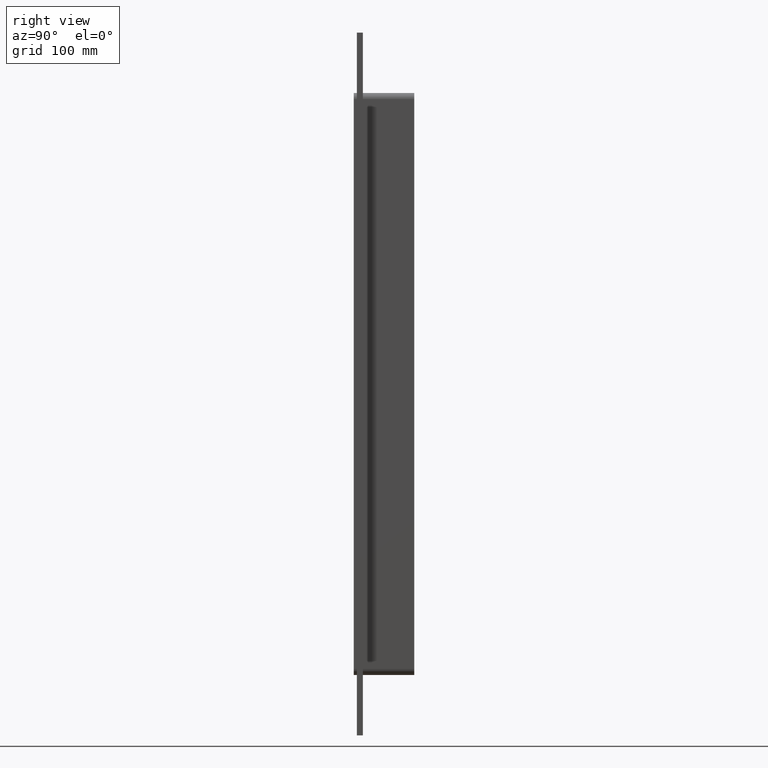
[diagram: clean part render]
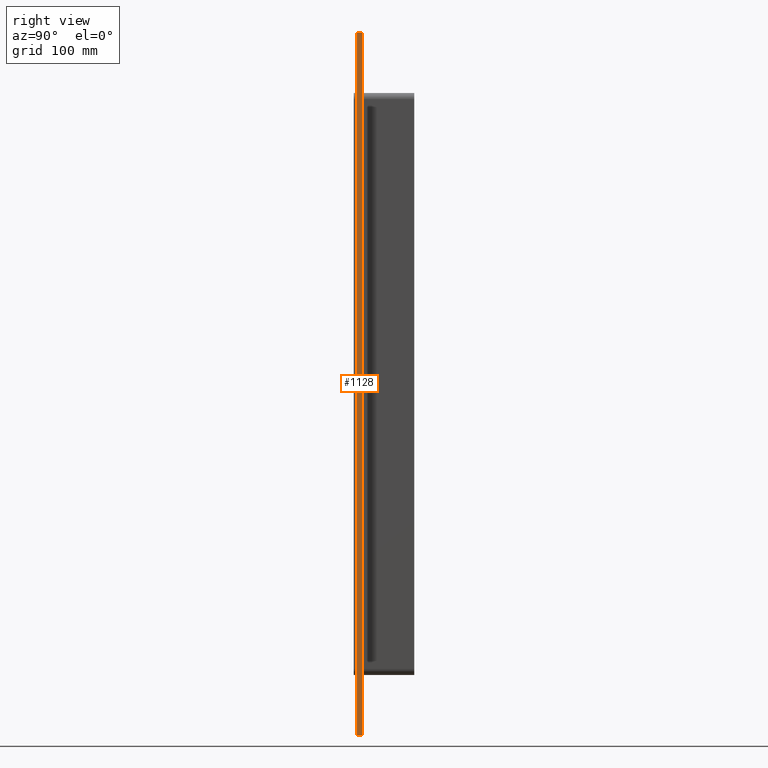
[diagram: same view with one face highlighted and labeled with its STEP entity id]
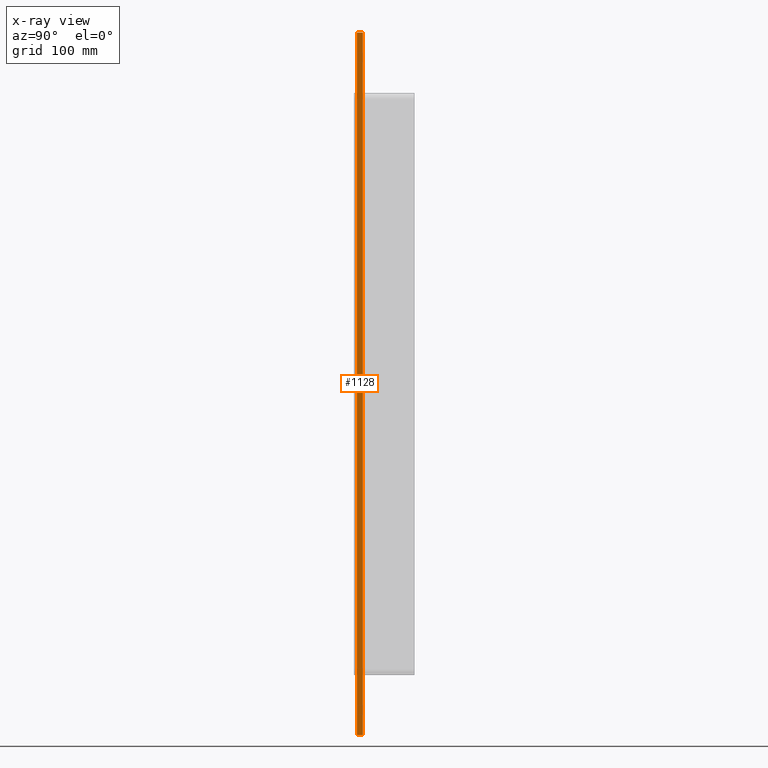
[diagram: x-ray of the same camera — body ghosted, the highlighted face saturated]
A machine part, right view. The second image highlights one B-rep face of the part: STEP entity #1128.
The next image is the same camera in x-ray: the body ghosted, the highlighted face saturated — about 0% of this face is hidden behind the body in this view.
In plain terms, the highlighted planar face has unit normal (1, 0, 0).
Its self-contained STEP definition (entity closure, byte-faithful):
#752=CARTESIAN_POINT('',(96.25,6.000000000000001,349.0));
#753=VERTEX_POINT('',#752);
#760=CARTESIAN_POINT('',(96.25,6.000000000000001,-348.99999999999983));
#761=VERTEX_POINT('',#760);
#762=CARTESIAN_POINT('',(96.25,6.000000000000001,349.0));
#763=DIRECTION('',(0.0,0.0,-1.0));
#764=VECTOR('',#763,697.99999999999977);
#765=LINE('',#762,#764);
#766=EDGE_CURVE('',#753,#761,#765,.T.);
#916=CARTESIAN_POINT('',(96.25,0.0,349.0));
#917=VERTEX_POINT('',#916);
#932=CARTESIAN_POINT('',(96.25,0.0,-348.99999999999989));
#933=VERTEX_POINT('',#932);
#940=CARTESIAN_POINT('',(96.25,0.0,349.0));
#941=DIRECTION('',(0.0,0.0,-1.0));
#942=VECTOR('',#941,697.99999999999977);
#943=LINE('',#940,#942);
#944=EDGE_CURVE('',#917,#933,#943,.T.);
#1103=CARTESIAN_POINT('',(96.25,0.0,-348.99999999999989));
#1104=DIRECTION('',(0.0,1.0,0.0));
#1105=VECTOR('',#1104,6.000000000000001);
#1106=LINE('',#1103,#1105);
#1107=EDGE_CURVE('',#933,#761,#1106,.T.);
#1112=CARTESIAN_POINT('',(96.25,0.0,349.0));
#1113=DIRECTION('',(1.0,0.0,0.0));
#1114=DIRECTION('',(0.0,0.0,-1.0));
#1115=AXIS2_PLACEMENT_3D('',#1112,#1113,#1114);
#1116=PLANE('',#1115);
#1117=ORIENTED_EDGE('',*,*,#944,.T.);
#1118=ORIENTED_EDGE('',*,*,#1107,.T.);
#1119=ORIENTED_EDGE('',*,*,#766,.F.);
#1120=CARTESIAN_POINT('',(96.25,0.0,349.0));
#1121=DIRECTION('',(0.0,1.0,0.0));
#1122=VECTOR('',#1121,6.000000000000001);
#1123=LINE('',#1120,#1122);
#1124=EDGE_CURVE('',#917,#753,#1123,.T.);
#1125=ORIENTED_EDGE('',*,*,#1124,.F.);
#1126=EDGE_LOOP('',(#1117,#1118,#1119,#1125));
#1127=FACE_OUTER_BOUND('',#1126,.T.);
#1128=ADVANCED_FACE('',(#1127),#1116,.T.);